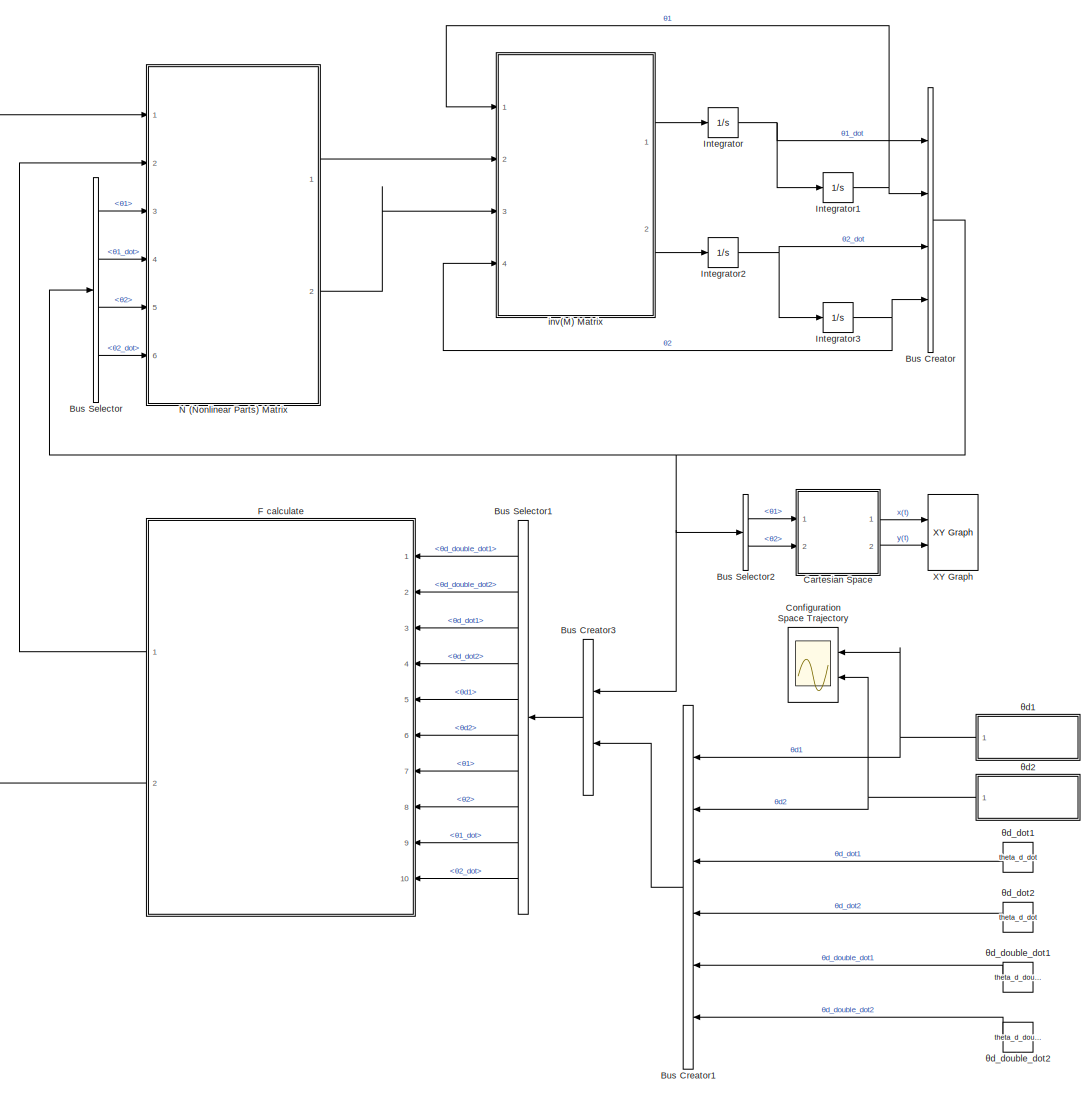
[diagram: root canvas - part 1/1, most of the canvas]
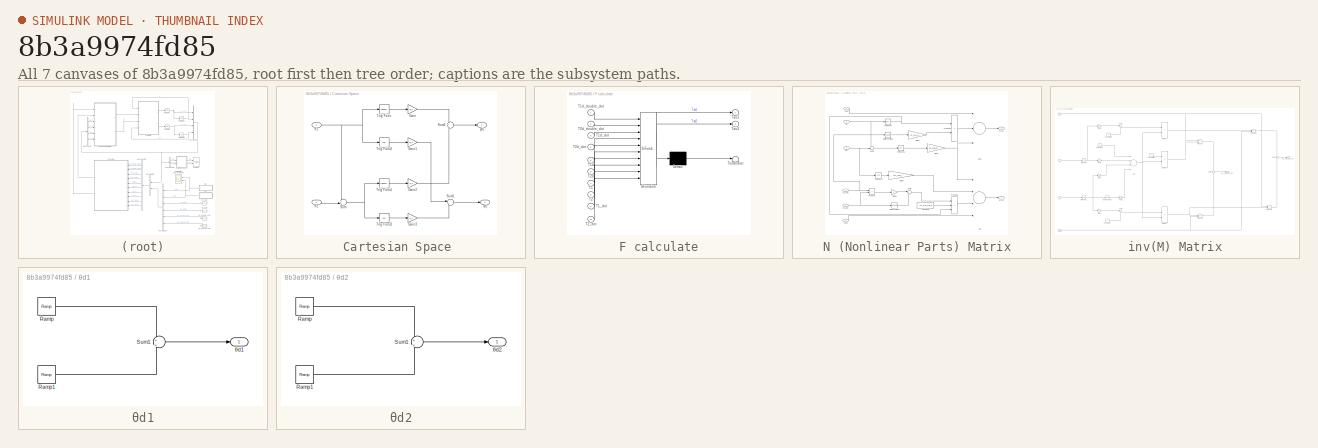
[diagram: thumbnail index - all 7 canvases of the model, root first then tree order]
MODEL slx_8b3a9974fd85
KIND model
CONFIG AbsTol = auto
CONFIG EnableMultiTasking = off
CONFIG FixedStep = 0.01
CONFIG MaxStep = auto
CONFIG MinStep = auto
CONFIG RelTol = 0.00001
CONFIG SampleTimeConstraint = Unconstrained
CONFIG Solver = FixedStepAuto
CONFIG SolverName = FixedStepAuto
CONFIG StartTime = 0.0
CONFIG StopTime = 10.0
WORKSPACE source: MAT-file member
WORKSPACE Kp_1 = 10000
WORKSPACE Kp_2 = 10000
WORKSPACE Kv_1 = 200
BLOCK [BusCreator] Bus Creator
  DisplayOption = bar
  InheritFromInputs = on
  Inputs = 4
  Ports = [4, 1]
BLOCK [BusCreator] Bus Creator1
  DisplayOption = bar
  InheritFromInputs = on
  Inputs = 6
  Ports = [6, 1]
BLOCK [BusCreator] Bus Creator3
  DisplayOption = bar
  InheritFromInputs = on
  Inputs = 2
  Ports = [2, 1]
BLOCK [BusSelector] Bus Selector
  OutputAsBus = off
  OutputSignals = θ1,θ1_dot,θ2,θ2_dot
  Ports = [1, 4]
BLOCK [BusSelector] Bus Selector1
  OutputAsBus = off
  OutputSignals = signal2.θd_double_dot1,signal2.θd_double_dot2,signal2.θd_dot1,signal2.θd_dot2,signal2.θd1,signal2.θd2,signal1.θ1,signal1.θ2,signal1.θ1_dot,signal1.θ2_dot
  Ports = [1, 10]
BLOCK [BusSelector] Bus Selector2
  OutputAsBus = off
  OutputSignals = θ1,θ2
  Ports = [1, 2]
BLOCK [SubSystem] Cartesian Space 
  Ports = [2, 2]
  RequestExecContextInheritance = off
  TreatAsAtomicUnit = on
  Variant = off
BLOCK [Gain] Cartesian Space /Gain
  Gain = a_1
  OutDataTypeStr = Inherit: Inherit via internal rule
  ParamDataTypeStr = Inherit: Inherit via internal rule
  SaturateOnIntegerOverflow = off
BLOCK [Gain] Cartesian Space /Gain1
  Gain = a_1
  OutDataTypeStr = Inherit: Inherit via internal rule
  ParamDataTypeStr = Inherit: Inherit via internal rule
  SaturateOnIntegerOverflow = off
BLOCK [Gain] Cartesian Space /Gain2
  Gain = a_2
  OutDataTypeStr = Inherit: Inherit via internal rule
  ParamDataTypeStr = Inherit: Inherit via internal rule
  SaturateOnIntegerOverflow = off
BLOCK [Gain] Cartesian Space /Gain3
  Gain = a_2
  OutDataTypeStr = Inherit: Inherit via internal rule
  ParamDataTypeStr = Inherit: Inherit via internal rule
  SaturateOnIntegerOverflow = off
BLOCK [Sum] Cartesian Space /Sum
  IconShape = round
  InputSameDT = off
  Inputs = ++|
  OutDataTypeStr = Inherit: Inherit via internal rule
  Ports = [2, 1]
  SaturateOnIntegerOverflow = off
BLOCK [Sum] Cartesian Space /Sum1
  IconShape = round
  InputSameDT = off
  Inputs = |++
  OutDataTypeStr = Inherit: Inherit via internal rule
  Ports = [2, 1]
  SaturateOnIntegerOverflow = off
BLOCK [Sum] Cartesian Space /Sum2
  IconShape = round
  InputSameDT = off
  Inputs = +|+
  OutDataTypeStr = Inherit: Inherit via internal rule
  Ports = [2, 1]
  SaturateOnIntegerOverflow = off
BLOCK [Trigonometry] Cartesian Space /Trig Func
  Ports = [1, 1]
BLOCK [Trigonometry] Cartesian Space /Trig Func1
  Ports = [1, 1]
BLOCK [Trigonometry] Cartesian Space /Trig Func2
  Operator = cos
  Ports = [1, 1]
BLOCK [Trigonometry] Cartesian Space /Trig Func3
  Operator = cos
  Ports = [1, 1]
BLOCK [Outport] Cartesian Space /x(t)
  IconDisplay = Port number
BLOCK [Outport] Cartesian Space /y(t)
  IconDisplay = Port number
  Port = 2
BLOCK [Inport] Cartesian Space /θ1
  IconDisplay = Port number
BLOCK [Inport] Cartesian Space /θ2
  IconDisplay = Port number
  Port = 2
BLOCK [Scope] Configuration Space Trajectory
  NumInputPorts = 2
  Ports = [2]
  ScopeSpecificationString = Simulink.scopes.TimeScopeBlockCfg('CurrentConfiguration', extmgr.ConfigurationSet(extmgr.Configuration('Core','General UI',true),extmgr.Configuration('Core','Source UI',true),extmgr.Configuration('Sources','WiredSimulink',true,'DataLoggingVariableName','ScopeData1'),extmgr.Configuration('Visuals','Time Domain',true,'SerializedDisplays',{struct('MinYLimReal','-0.2618','MaxYLimReal','2.35619','YLabe...<+1364ch>
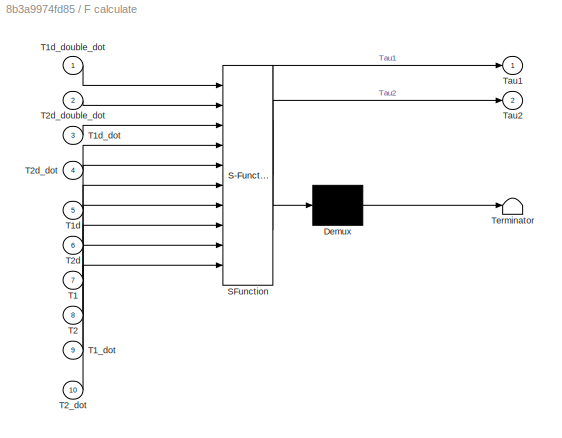
BLOCK [SubSystem] F calculate
  ErrorFcn = Stateflow.Translate.translate
  PermitHierarchicalResolution = ExplicitOnly
  Ports = [10, 2]
  RequestExecContextInheritance = off
  SFBlockType = MATLAB Function
  TreatAsAtomicUnit = on
  Variant = off
BLOCK [Demux] F calculate/ Demux 
  Outputs = 1
  Ports = [1, 1]
BLOCK [S-Function] F calculate/ SFunction 
  EnableBusSupport = on
  FunctionName = sf_sfun
  PortCounts = [10 3]
  Ports = [10, 3]
  SFcnIsStateOwnerBlock = off
  SFunctionDeploymentMode = off
  Tag = Stateflow S-Function Q6_b_second_solution 2
BLOCK [Terminator] F calculate/ Terminator 
BLOCK [Inport] F calculate/T1
  IconDisplay = Port number
  Port = 7
BLOCK [Inport] F calculate/T1_dot
  IconDisplay = Port number
  Port = 9
BLOCK [Inport] F calculate/T1d
  IconDisplay = Port number
  Port = 5
BLOCK [Inport] F calculate/T1d_dot
  IconDisplay = Port number
  Port = 3
BLOCK [Inport] F calculate/T1d_double_dot
  IconDisplay = Port number
BLOCK [Inport] F calculate/T2
  IconDisplay = Port number
  Port = 8
BLOCK [Inport] F calculate/T2_dot
  IconDisplay = Port number
  Port = 10
BLOCK [Inport] F calculate/T2d
  IconDisplay = Port number
  Port = 6
BLOCK [Inport] F calculate/T2d_dot
  IconDisplay = Port number
  Port = 4
BLOCK [Inport] F calculate/T2d_double_dot
  IconDisplay = Port number
  Port = 2
BLOCK [Outport] F calculate/Tau1
  IconDisplay = Port number
BLOCK [Outport] F calculate/Tau2
  IconDisplay = Port number
  Port = 2
BLOCK [Integrator] Integrator
  Ports = [1, 1]
BLOCK [Integrator] Integrator1
  Ports = [1, 1]
BLOCK [Integrator] Integrator2
  Ports = [1, 1]
BLOCK [Integrator] Integrator3
  Ports = [1, 1]
BLOCK [SubSystem] N (Nonlinear Parts) Matrix
  Ports = [6, 2]
  RequestExecContextInheritance = off
  TreatAsAtomicUnit = on
  Variant = off
BLOCK [Sum] N (Nonlinear Parts) Matrix/Add
  InputSameDT = off
  Inputs = ---+
  OutDataTypeStr = Inherit: Inherit via internal rule
  Ports = [4, 1]
  SaturateOnIntegerOverflow = off
BLOCK [Sum] N (Nonlinear Parts) Matrix/Add1
  InputSameDT = off
  Inputs = +--
  OutDataTypeStr = Inherit: Inherit via internal rule
  Ports = [3, 1]
  SaturateOnIntegerOverflow = off
BLOCK [Constant] N (Nonlinear Parts) Matrix/Constant2
  Value = -m_2*a_1*a_2
BLOCK [Gain] N (Nonlinear Parts) Matrix/Gain1
  Gain = m_2*g*a_2
  OutDataTypeStr = Inherit: Inherit via internal rule
  ParamDataTypeStr = Inherit: Inherit via internal rule
  SaturateOnIntegerOverflow = off
BLOCK [Gain] N (Nonlinear Parts) Matrix/Gain3
  Gain = (m_1+m_2)*g*a_1
  OutDataTypeStr = Inherit: Inherit via internal rule
  ParamDataTypeStr = Inherit: Inherit via internal rule
  SaturateOnIntegerOverflow = off
BLOCK [Gain] N (Nonlinear Parts) Matrix/Gain4
  Gain = m_2*a_1*a_2
  OutDataTypeStr = Inherit: Inherit via internal rule
  ParamDataTypeStr = Inherit: Inherit via internal rule
  SaturateOnIntegerOverflow = off
BLOCK [Gain] N (Nonlinear Parts) Matrix/Gain5
  Gain = 2
  OutDataTypeStr = Inherit: Inherit via internal rule
  ParamDataTypeStr = Inherit: Inherit via internal rule
  SaturateOnIntegerOverflow = off
BLOCK [Math] N (Nonlinear Parts) Matrix/Math Function2
  Operator = square
  Ports = [1, 1]
BLOCK [Math] N (Nonlinear Parts) Matrix/Math Function3
  Operator = square
  Ports = [1, 1]
BLOCK [Outport] N (Nonlinear Parts) Matrix/N(1,1)
  IconDisplay = Port number
BLOCK [Outport] N (Nonlinear Parts) Matrix/N(2,1)
  IconDisplay = Port number
  Port = 2
BLOCK [Product] N (Nonlinear Parts) Matrix/Product
  InputSameDT = off
  OutDataTypeStr = Inherit: Inherit via internal rule
  Ports = [2, 1]
  RndMeth = Floor
  SaturateOnIntegerOverflow = off
BLOCK [Product] N (Nonlinear Parts) Matrix/Product2
  InputSameDT = off
  Inputs = 3
  OutDataTypeStr = Inherit: Inherit via internal rule
  Ports = [3, 1]
  RndMeth = Floor
  SaturateOnIntegerOverflow = off
BLOCK [Product] N (Nonlinear Parts) Matrix/Product5
  InputSameDT = off
  OutDataTypeStr = Inherit: Inherit via internal rule
  Ports = [2, 1]
  RndMeth = Floor
  SaturateOnIntegerOverflow = off
BLOCK [Sum] N (Nonlinear Parts) Matrix/Sum1
  IconShape = round
  InputSameDT = off
  Inputs = ++|
  OutDataTypeStr = Inherit: Inherit via internal rule
  Ports = [2, 1]
  SaturateOnIntegerOverflow = off
BLOCK [Sum] N (Nonlinear Parts) Matrix/Sum3
  IconShape = round
  InputSameDT = off
  Inputs = |++
  OutDataTypeStr = Inherit: Inherit via internal rule
  Ports = [2, 1]
  SaturateOnIntegerOverflow = off
BLOCK [Inport] N (Nonlinear Parts) Matrix/Tau1
  IconDisplay = Port number
  Port = 2
BLOCK [Inport] N (Nonlinear Parts) Matrix/Tau2
  IconDisplay = Port number
BLOCK [Trigonometry] N (Nonlinear Parts) Matrix/TrigFunc1
  Operator = cos
  Ports = [1, 1]
BLOCK [Trigonometry] N (Nonlinear Parts) Matrix/TrigFunc3
  Operator = cos
  Ports = [1, 1]
BLOCK [Trigonometry] N (Nonlinear Parts) Matrix/TrigFunc4
  Ports = [1, 1]
BLOCK [Inport] N (Nonlinear Parts) Matrix/θ1 
  IconDisplay = Port number
  Port = 3
BLOCK [Inport] N (Nonlinear Parts) Matrix/θ1_dot
  IconDisplay = Port number
  Port = 4
BLOCK [Inport] N (Nonlinear Parts) Matrix/θ2
  IconDisplay = Port number
  Port = 5
BLOCK [Inport] N (Nonlinear Parts) Matrix/θ2_dot
  IconDisplay = Port number
  Port = 6
BLOCK [Reference] XY Graph  REF=simulink/Sinks/XY Graph
  Ports = [2]
  SourceBlock = simulink/Sinks/XY Graph
  SourceProductBaseCode = SL
  SourceProductName = Simulink
  SourceType = XY scope.
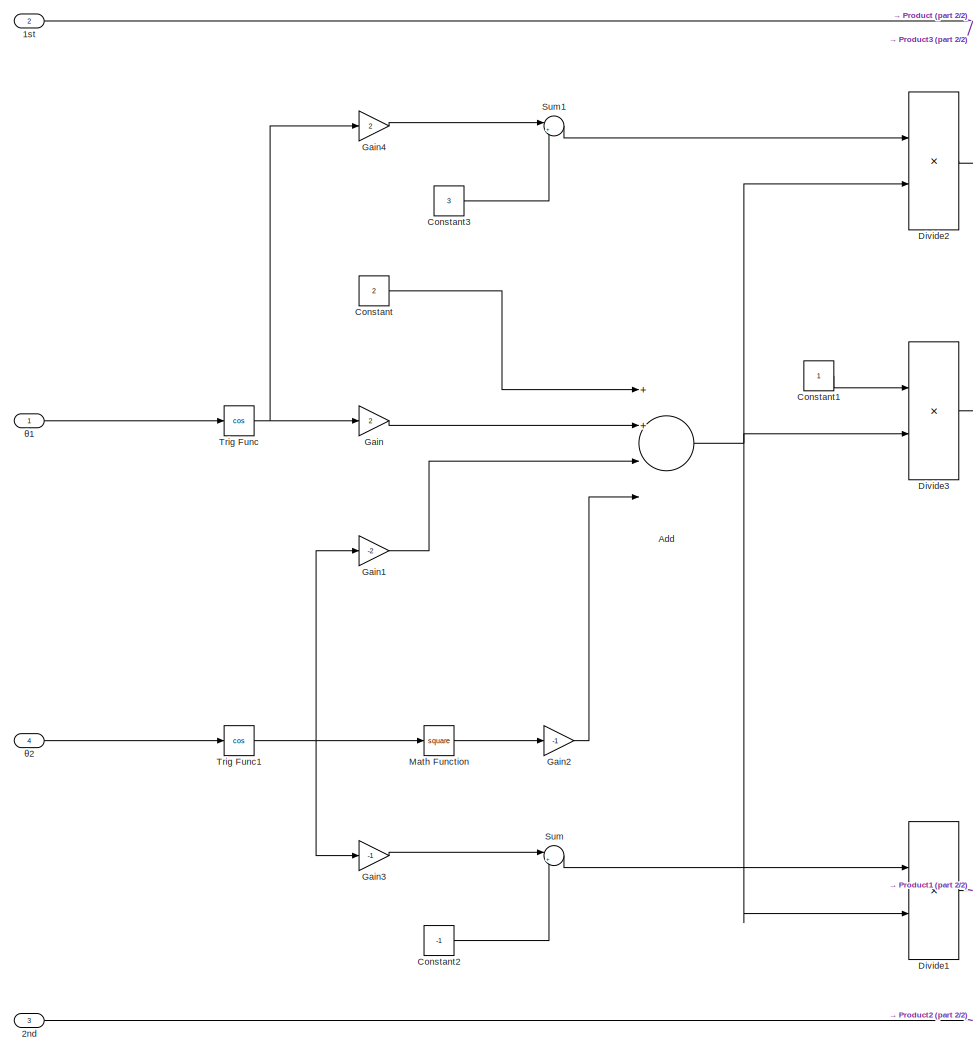
[diagram: inv(M) Matrix - part 1/2, left side, full height]
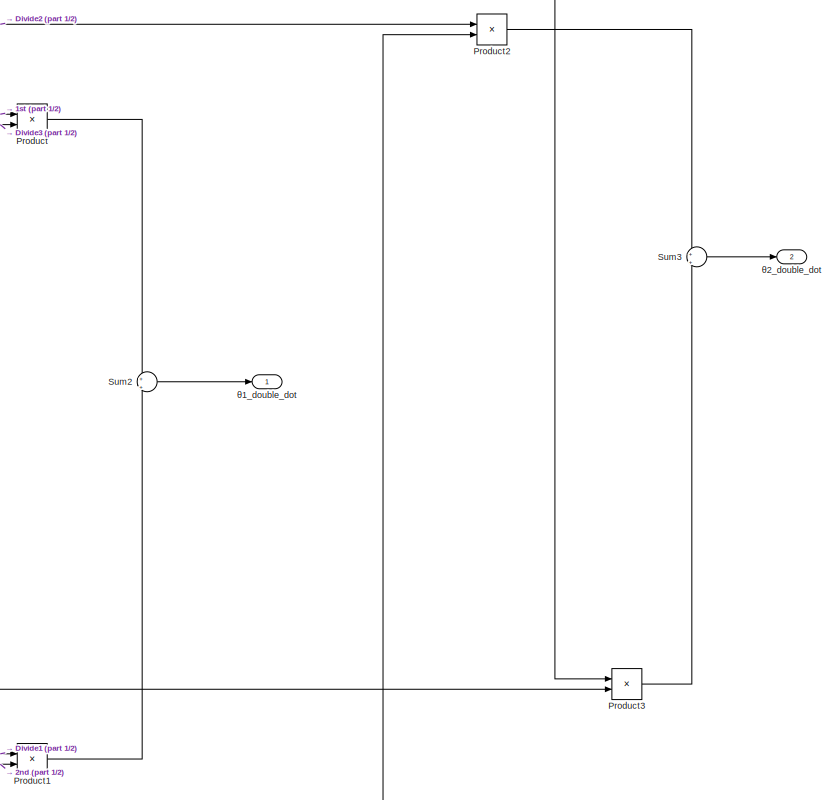
[diagram: inv(M) Matrix - part 2/2, right side, full height]
BLOCK [SubSystem] inv(M) Matrix
  Ports = [4, 2]
  RequestExecContextInheritance = off
  TreatAsAtomicUnit = on
  Variant = off
BLOCK [Inport] inv(M) Matrix/1st
  IconDisplay = Port number
  Port = 2
BLOCK [Inport] inv(M) Matrix/2nd
  IconDisplay = Port number
  Port = 3
BLOCK [Sum] inv(M) Matrix/Add
  InputSameDT = off
  Inputs = 4
  OutDataTypeStr = Inherit: Inherit via internal rule
  Ports = [4, 1]
  SaturateOnIntegerOverflow = off
BLOCK [Constant] inv(M) Matrix/Constant
  Value = 2
BLOCK [Constant] inv(M) Matrix/Constant1
BLOCK [Constant] inv(M) Matrix/Constant2
  Value = -1
BLOCK [Constant] inv(M) Matrix/Constant3
  Value = 3
BLOCK [Product] inv(M) Matrix/Divide1
  InputSameDT = off
  Inputs = */
  OutDataTypeStr = Inherit: Inherit via internal rule
  Ports = [2, 1]
  RndMeth = Floor
  SaturateOnIntegerOverflow = off
BLOCK [Product] inv(M) Matrix/Divide2
  InputSameDT = off
  Inputs = */
  OutDataTypeStr = Inherit: Inherit via internal rule
  Ports = [2, 1]
  RndMeth = Floor
  SaturateOnIntegerOverflow = off
BLOCK [Product] inv(M) Matrix/Divide3
  InputSameDT = off
  Inputs = */
  OutDataTypeStr = Inherit: Inherit via internal rule
  Ports = [2, 1]
  RndMeth = Floor
  SaturateOnIntegerOverflow = off
BLOCK [Gain] inv(M) Matrix/Gain
  Gain = 2
  OutDataTypeStr = Inherit: Inherit via internal rule
  ParamDataTypeStr = Inherit: Inherit via internal rule
  SaturateOnIntegerOverflow = off
BLOCK [Gain] inv(M) Matrix/Gain1
  Gain = -2
  OutDataTypeStr = Inherit: Inherit via internal rule
  ParamDataTypeStr = Inherit: Inherit via internal rule
  SaturateOnIntegerOverflow = off
BLOCK [Gain] inv(M) Matrix/Gain2
  Gain = -1
  OutDataTypeStr = Inherit: Inherit via internal rule
  ParamDataTypeStr = Inherit: Inherit via internal rule
  SaturateOnIntegerOverflow = off
BLOCK [Gain] inv(M) Matrix/Gain3
  Gain = -1
  OutDataTypeStr = Inherit: Inherit via internal rule
  ParamDataTypeStr = Inherit: Inherit via internal rule
  SaturateOnIntegerOverflow = off
BLOCK [Gain] inv(M) Matrix/Gain4
  Gain = 2
  OutDataTypeStr = Inherit: Inherit via internal rule
  ParamDataTypeStr = Inherit: Inherit via internal rule
  SaturateOnIntegerOverflow = off
BLOCK [Math] inv(M) Matrix/Math Function
  Operator = square
  Ports = [1, 1]
BLOCK [Product] inv(M) Matrix/Product
  InputSameDT = off
  OutDataTypeStr = Inherit: Inherit via internal rule
  Ports = [2, 1]
  RndMeth = Floor
  SaturateOnIntegerOverflow = off
BLOCK [Product] inv(M) Matrix/Product1
  InputSameDT = off
  OutDataTypeStr = Inherit: Inherit via internal rule
  Ports = [2, 1]
  RndMeth = Floor
  SaturateOnIntegerOverflow = off
BLOCK [Product] inv(M) Matrix/Product2
  InputSameDT = off
  OutDataTypeStr = Inherit: Inherit via internal rule
  Ports = [2, 1]
  RndMeth = Floor
  SaturateOnIntegerOverflow = off
BLOCK [Product] inv(M) Matrix/Product3
  InputSameDT = off
  OutDataTypeStr = Inherit: Inherit via internal rule
  Ports = [2, 1]
  RndMeth = Floor
  SaturateOnIntegerOverflow = off
BLOCK [Sum] inv(M) Matrix/Sum
  IconShape = round
  InputSameDT = off
  Inputs = |++
  OutDataTypeStr = Inherit: Inherit via internal rule
  Ports = [2, 1]
  SaturateOnIntegerOverflow = off
BLOCK [Sum] inv(M) Matrix/Sum1
  IconShape = round
  InputSameDT = off
  Inputs = |++
  OutDataTypeStr = Inherit: Inherit via internal rule
  Ports = [2, 1]
  SaturateOnIntegerOverflow = off
BLOCK [Sum] inv(M) Matrix/Sum2
  IconShape = round
  InputSameDT = off
  Inputs = +|+
  OutDataTypeStr = Inherit: Inherit via internal rule
  Ports = [2, 1]
  SaturateOnIntegerOverflow = off
BLOCK [Sum] inv(M) Matrix/Sum3
  IconShape = round
  InputSameDT = off
  Inputs = +|+
  OutDataTypeStr = Inherit: Inherit via internal rule
  Ports = [2, 1]
  SaturateOnIntegerOverflow = off
BLOCK [Trigonometry] inv(M) Matrix/Trig Func
  Operator = cos
  Ports = [1, 1]
BLOCK [Trigonometry] inv(M) Matrix/Trig Func1
  Operator = cos
  Ports = [1, 1]
BLOCK [Inport] inv(M) Matrix/θ1
  IconDisplay = Port number
BLOCK [Outport] inv(M) Matrix/θ1_double_dot
  IconDisplay = Port number
BLOCK [Inport] inv(M) Matrix/θ2
  IconDisplay = Port number
  Port = 4
BLOCK [Outport] inv(M) Matrix/θ2_double_dot
  IconDisplay = Port number
  Port = 2
BLOCK [SubSystem] θd1
  Ports = [0, 1]
  RequestExecContextInheritance = off
  TreatAsAtomicUnit = on
  Variant = off
BLOCK [Reference] θd1/Ramp  REF=simulink/Sources/Ramp
  Ports = [0, 1]
  SourceBlock = simulink/Sources/Ramp
  SourceProductBaseCode = SL
  SourceProductName = Simulink
  SourceType = Ramp
BLOCK [Reference] θd1/Ramp1  REF=simulink/Sources/Ramp
  Ports = [0, 1]
  SourceBlock = simulink/Sources/Ramp
  SourceProductBaseCode = SL
  SourceProductName = Simulink
  SourceType = Ramp
BLOCK [Sum] θd1/Sum1
  IconShape = round
  InputSameDT = off
  Inputs = +|+
  OutDataTypeStr = Inherit: Inherit via internal rule
  Ports = [2, 1]
  SaturateOnIntegerOverflow = off
BLOCK [Outport] θd1/θd1
  IconDisplay = Port number
BLOCK [SubSystem] θd2
  Ports = [0, 1]
  RequestExecContextInheritance = off
  TreatAsAtomicUnit = on
  Variant = off
BLOCK [Reference] θd2/Ramp  REF=simulink/Sources/Ramp
  Ports = [0, 1]
  SourceBlock = simulink/Sources/Ramp
  SourceProductBaseCode = SL
  SourceProductName = Simulink
  SourceType = Ramp
BLOCK [Reference] θd2/Ramp1  REF=simulink/Sources/Ramp
  Ports = [0, 1]
  SourceBlock = simulink/Sources/Ramp
  SourceProductBaseCode = SL
  SourceProductName = Simulink
  SourceType = Ramp
BLOCK [Sum] θd2/Sum1
  IconShape = round
  InputSameDT = off
  Inputs = +|+
  OutDataTypeStr = Inherit: Inherit via internal rule
  Ports = [2, 1]
  SaturateOnIntegerOverflow = off
BLOCK [Outport] θd2/θd2
  IconDisplay = Port number
BLOCK [Constant] θd_dot1
  Value = theta_d_dot
BLOCK [Constant] θd_dot2
  Value = theta_d_dot
BLOCK [Constant] θd_double_dot1
  Value = theta_d_double_dot
BLOCK [Constant] θd_double_dot2
  Value = theta_d_double_dot
LINE Bus Creator1:1 -> Bus Creator3:2
LINE Bus Creator3:1 -> Bus Selector1:1
NET Bus Creator:1 -> Bus Creator3:1, Bus Selector2:1, Bus Selector:1
LINE Bus Selector1:1 -> F calculate:1
LINE Bus Selector1:10 -> F calculate:10
LINE Bus Selector1:2 -> F calculate:2
LINE Bus Selector1:3 -> F calculate:3
LINE Bus Selector1:4 -> F calculate:4
LINE Bus Selector1:5 -> F calculate:5
LINE Bus Selector1:6 -> F calculate:6
LINE Bus Selector1:7 -> F calculate:7
LINE Bus Selector1:8 -> F calculate:8
LINE Bus Selector1:9 -> F calculate:9
LINE Bus Selector2:1 -> Cartesian Space :1
LINE Bus Selector2:2 -> Cartesian Space :2
LINE Bus Selector:1 -> N (Nonlinear Parts) Matrix:3
LINE Bus Selector:2 -> N (Nonlinear Parts) Matrix:4
LINE Bus Selector:3 -> N (Nonlinear Parts) Matrix:5
LINE Bus Selector:4 -> N (Nonlinear Parts) Matrix:6
LINE Cartesian Space /Gain1:1 -> Cartesian Space /Sum1:1
LINE Cartesian Space /Gain2:1 -> Cartesian Space /Sum2:2
LINE Cartesian Space /Gain3:1 -> Cartesian Space /Sum1:2
LINE Cartesian Space /Gain:1 -> Cartesian Space /Sum2:1
LINE Cartesian Space /Sum1:1 -> Cartesian Space /x(t):1
LINE Cartesian Space /Sum2:1 -> Cartesian Space /y(t):1
NET Cartesian Space /Sum:1 -> Cartesian Space /Trig Func1:1, Cartesian Space /Trig Func3:1
LINE Cartesian Space /Trig Func1:1 -> Cartesian Space /Gain2:1
LINE Cartesian Space /Trig Func2:1 -> Cartesian Space /Gain1:1
LINE Cartesian Space /Trig Func3:1 -> Cartesian Space /Gain3:1
LINE Cartesian Space /Trig Func:1 -> Cartesian Space /Gain:1
NET Cartesian Space /θ1:1 -> Cartesian Space /Sum:1, Cartesian Space /Trig Func2:1, Cartesian Space /Trig Func:1
LINE Cartesian Space /θ2:1 -> Cartesian Space /Sum:2
LINE Cartesian Space :1 -> XY Graph:1
LINE Cartesian Space :2 -> XY Graph:2
LINE F calculate:1 -> N (Nonlinear Parts) Matrix:2
LINE F calculate:2 -> N (Nonlinear Parts) Matrix:1
NET Integrator1:1 -> Bus Creator:2, inv(M) Matrix:1
NET Integrator2:1 -> Bus Creator:3, Integrator3:1
NET Integrator3:1 -> Bus Creator:4, inv(M) Matrix:4
NET Integrator:1 -> Bus Creator:1, Integrator1:1
LINE N (Nonlinear Parts) Matrix/Add1:1 -> N (Nonlinear Parts) Matrix/N(2,1):1
LINE N (Nonlinear Parts) Matrix/Add:1 -> N (Nonlinear Parts) Matrix/N(1,1):1
LINE N (Nonlinear Parts) Matrix/Constant2:1 -> N (Nonlinear Parts) Matrix/Product2:2
NET N (Nonlinear Parts) Matrix/Gain1:1 -> N (Nonlinear Parts) Matrix/Add1:3, N (Nonlinear Parts) Matrix/Add:1
LINE N (Nonlinear Parts) Matrix/Gain3:1 -> N (Nonlinear Parts) Matrix/Add:2
LINE N (Nonlinear Parts) Matrix/Gain4:1 -> N (Nonlinear Parts) Matrix/Product5:2
LINE N (Nonlinear Parts) Matrix/Gain5:1 -> N (Nonlinear Parts) Matrix/Sum3:1
LINE N (Nonlinear Parts) Matrix/Math Function2:1 -> N (Nonlinear Parts) Matrix/Sum3:2
LINE N (Nonlinear Parts) Matrix/Math Function3:1 -> N (Nonlinear Parts) Matrix/Gain4:1
LINE N (Nonlinear Parts) Matrix/Product2:1 -> N (Nonlinear Parts) Matrix/Add:3
LINE N (Nonlinear Parts) Matrix/Product5:1 -> N (Nonlinear Parts) Matrix/Add1:2
LINE N (Nonlinear Parts) Matrix/Product:1 -> N (Nonlinear Parts) Matrix/Gain5:1
LINE N (Nonlinear Parts) Matrix/Sum1:1 -> N (Nonlinear Parts) Matrix/TrigFunc1:1
LINE N (Nonlinear Parts) Matrix/Sum3:1 -> N (Nonlinear Parts) Matrix/Product2:1
LINE N (Nonlinear Parts) Matrix/Tau1:1 -> N (Nonlinear Parts) Matrix/Add:4
LINE N (Nonlinear Parts) Matrix/Tau2:1 -> N (Nonlinear Parts) Matrix/Add1:1
LINE N (Nonlinear Parts) Matrix/TrigFunc1:1 -> N (Nonlinear Parts) Matrix/Gain1:1
LINE N (Nonlinear Parts) Matrix/TrigFunc3:1 -> N (Nonlinear Parts) Matrix/Gain3:1
NET N (Nonlinear Parts) Matrix/TrigFunc4:1 -> N (Nonlinear Parts) Matrix/Product2:3, N (Nonlinear Parts) Matrix/Product5:1
NET N (Nonlinear Parts) Matrix/θ1 :1 -> N (Nonlinear Parts) Matrix/Sum1:2, N (Nonlinear Parts) Matrix/TrigFunc3:1
NET N (Nonlinear Parts) Matrix/θ1_dot:1 -> N (Nonlinear Parts) Matrix/Math Function3:1, N (Nonlinear Parts) Matrix/Product:1
NET N (Nonlinear Parts) Matrix/θ2:1 -> N (Nonlinear Parts) Matrix/Sum1:1, N (Nonlinear Parts) Matrix/TrigFunc4:1
NET N (Nonlinear Parts) Matrix/θ2_dot:1 -> N (Nonlinear Parts) Matrix/Math Function2:1, N (Nonlinear Parts) Matrix/Product:2
LINE N (Nonlinear Parts) Matrix:1 -> inv(M) Matrix:2
LINE N (Nonlinear Parts) Matrix:2 -> inv(M) Matrix:3
NET inv(M) Matrix/1st:1 -> inv(M) Matrix/Product3:1, inv(M) Matrix/Product:1
NET inv(M) Matrix/2nd:1 -> inv(M) Matrix/Product1:2, inv(M) Matrix/Product2:2
NET inv(M) Matrix/Add:1 -> inv(M) Matrix/Divide1:2, inv(M) Matrix/Divide2:2, inv(M) Matrix/Divide3:2
LINE inv(M) Matrix/Constant1:1 -> inv(M) Matrix/Divide3:1
LINE inv(M) Matrix/Constant2:1 -> inv(M) Matrix/Sum:2
LINE inv(M) Matrix/Constant3:1 -> inv(M) Matrix/Sum1:2
LINE inv(M) Matrix/Constant:1 -> inv(M) Matrix/Add:1
NET inv(M) Matrix/Divide1:1 -> inv(M) Matrix/Product1:1, inv(M) Matrix/Product3:2
LINE inv(M) Matrix/Divide2:1 -> inv(M) Matrix/Product2:1
LINE inv(M) Matrix/Divide3:1 -> inv(M) Matrix/Product:2
LINE inv(M) Matrix/Gain1:1 -> inv(M) Matrix/Add:3
LINE inv(M) Matrix/Gain2:1 -> inv(M) Matrix/Add:4
LINE inv(M) Matrix/Gain3:1 -> inv(M) Matrix/Sum:1
LINE inv(M) Matrix/Gain4:1 -> inv(M) Matrix/Sum1:1
LINE inv(M) Matrix/Gain:1 -> inv(M) Matrix/Add:2
LINE inv(M) Matrix/Math Function:1 -> inv(M) Matrix/Gain2:1
LINE inv(M) Matrix/Product1:1 -> inv(M) Matrix/Sum2:2
LINE inv(M) Matrix/Product2:1 -> inv(M) Matrix/Sum3:1
LINE inv(M) Matrix/Product3:1 -> inv(M) Matrix/Sum3:2
LINE inv(M) Matrix/Product:1 -> inv(M) Matrix/Sum2:1
LINE inv(M) Matrix/Sum1:1 -> inv(M) Matrix/Divide2:1
LINE inv(M) Matrix/Sum2:1 -> inv(M) Matrix/θ1_double_dot:1
LINE inv(M) Matrix/Sum3:1 -> inv(M) Matrix/θ2_double_dot:1
LINE inv(M) Matrix/Sum:1 -> inv(M) Matrix/Divide1:1
NET inv(M) Matrix/Trig Func1:1 -> inv(M) Matrix/Gain1:1, inv(M) Matrix/Gain3:1, inv(M) Matrix/Math Function:1
NET inv(M) Matrix/Trig Func:1 -> inv(M) Matrix/Gain4:1, inv(M) Matrix/Gain:1
LINE inv(M) Matrix/θ1:1 -> inv(M) Matrix/Trig Func:1
LINE inv(M) Matrix/θ2:1 -> inv(M) Matrix/Trig Func1:1
LINE inv(M) Matrix:1 -> Integrator:1
LINE inv(M) Matrix:2 -> Integrator2:1
LINE θd1/Ramp1:1 -> θd1/Sum1:2
LINE θd1/Ramp:1 -> θd1/Sum1:1
LINE θd1/Sum1:1 -> θd1/θd1:1
NET θd1:1 -> Bus Creator1:1, Configuration Space Trajectory:1
LINE θd2/Ramp1:1 -> θd2/Sum1:2
LINE θd2/Ramp:1 -> θd2/Sum1:1
LINE θd2/Sum1:1 -> θd2/θd2:1
NET θd2:1 -> Bus Creator1:2, Configuration Space Trajectory:2
LINE θd_dot1:1 -> Bus Creator1:3
LINE θd_dot2:1 -> Bus Creator1:4
LINE θd_double_dot1:1 -> Bus Creator1:5
LINE θd_double_dot2:1 -> Bus Creator1:6
note: NET lines group one-source signal fan-out (src -> all destinations, sorted); 1:1 wires keep LINE
CHART F calculate states=1 transitions=1
  STATE_LABEL 'eML_blk_kernel()'
  STATE_LABEL 'SCRIPT:\nfunction [Tau1, Tau2] = fcn(T1d_double_dot, T2d_double_dot, T1d_dot, T2d_dot, T1d, T2d, T1, T2, T1_dot, T2_dot)\nKv = 200; Kp = 10000; g = 9.8;\n\ne = zeros(2,1);\ne_dot = zeros(2,1);\ne = [T1d - T1; T2d - T2];\ne_dot = [T1d_dot - T1_dot; T2d_dot - T2_dot];\n\nM = @(T2) [3+2*cos(T2) 1+cos(T2); 1+cos(T2) 1];\nN = @(T1,T2,T1_dot,T2_dot) [-(2*T1_dot*T2_dot+T2_dot^2)*sin(T2) + 2*g*cos(T1) + g*cos(T1+T2...<+174ch>'
